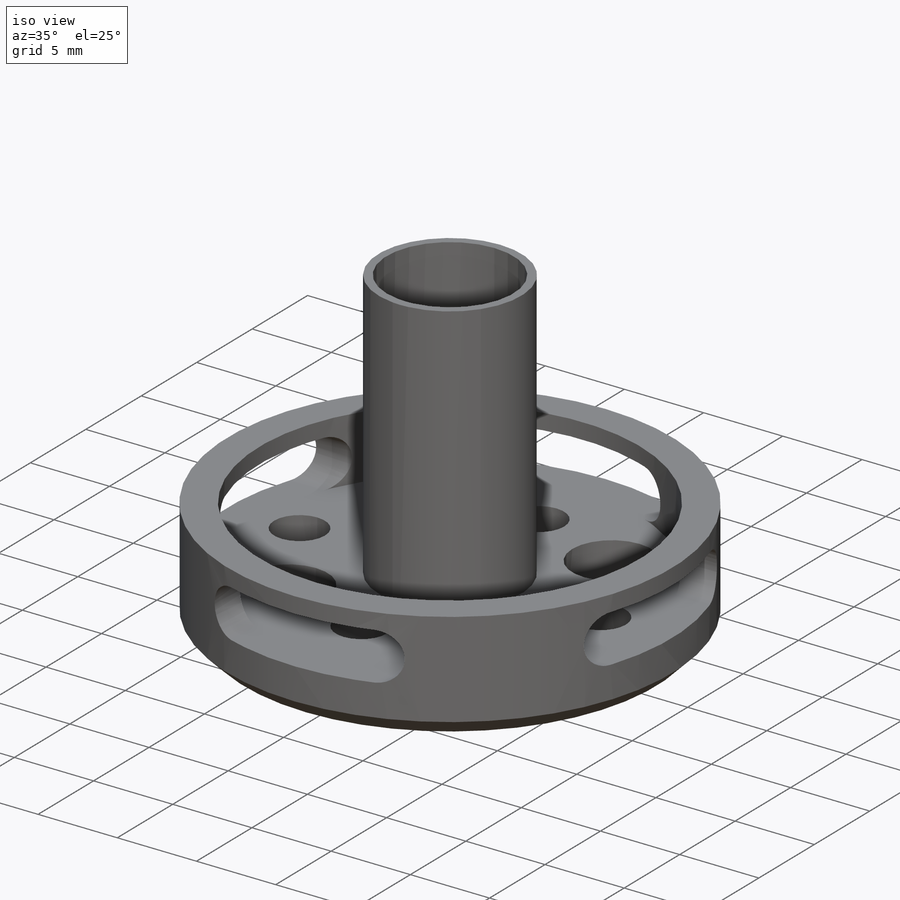
[diagram: iso view]
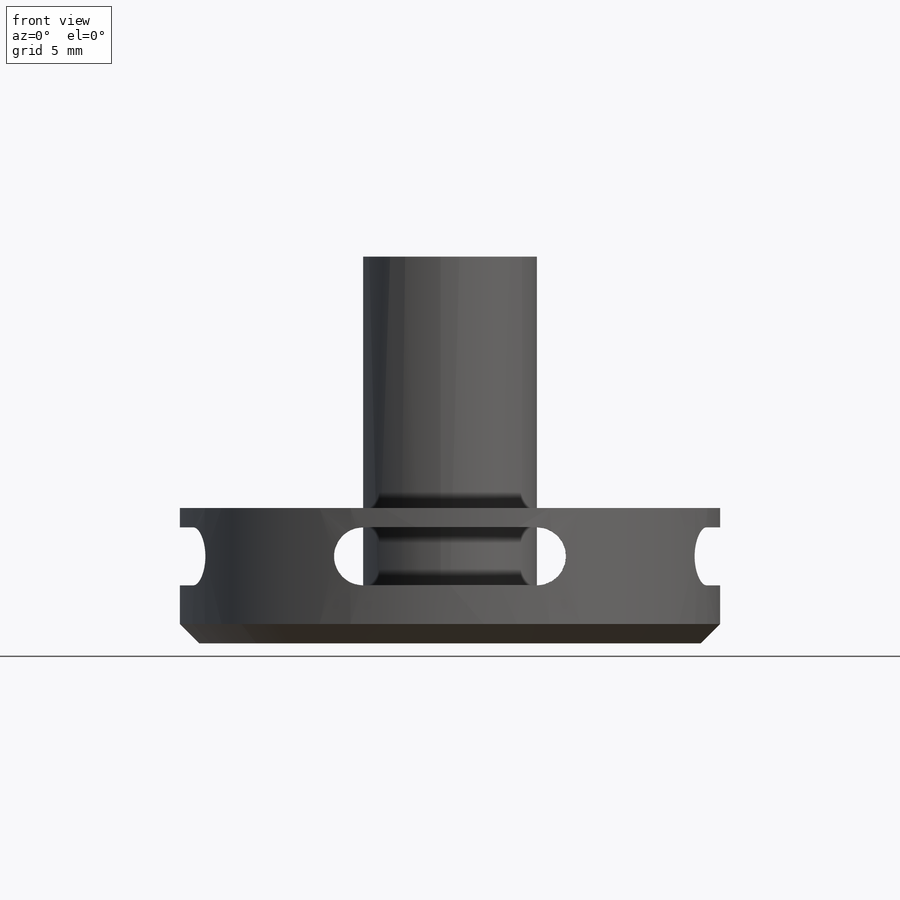
[diagram: front view]
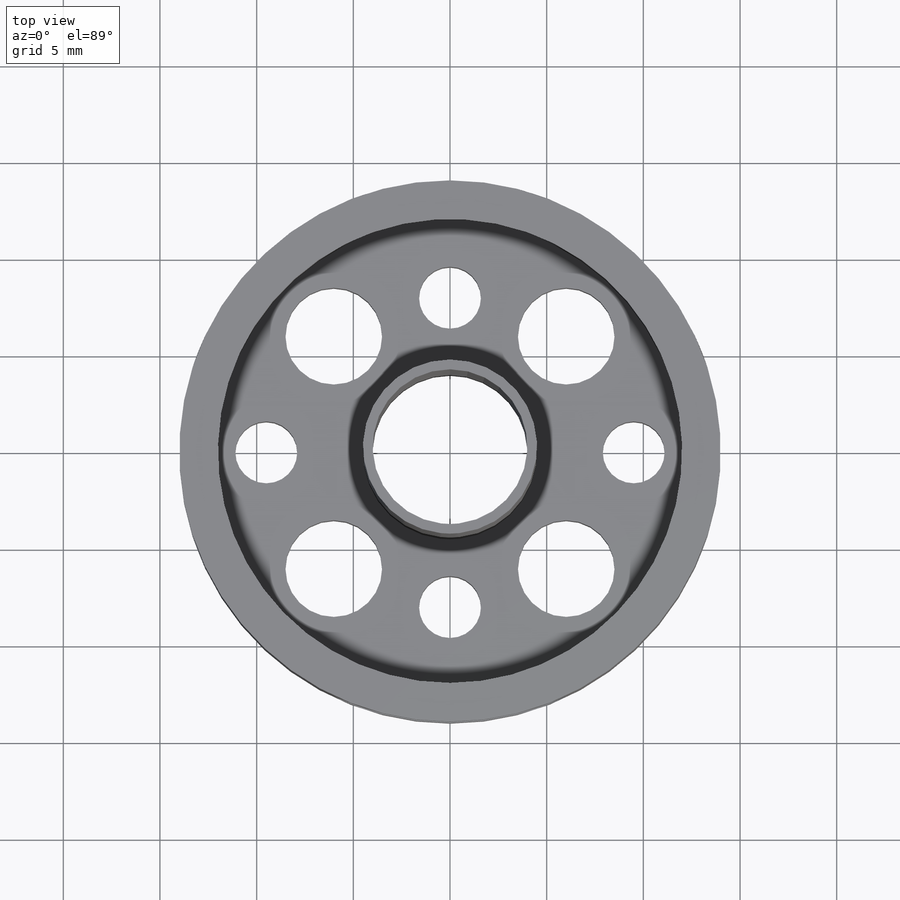
[diagram: top view]
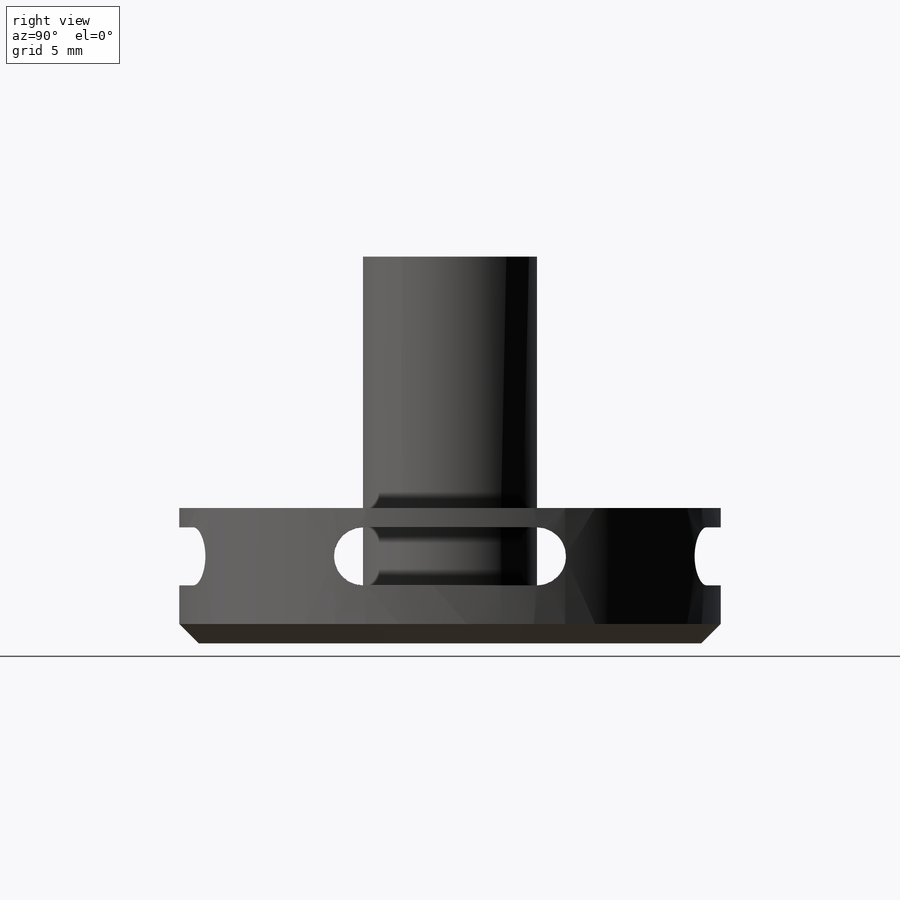
[diagram: right view]
SOLIDWORKS PART (.sldprt)
format: sldprt  version: not decoded by parser v0  size: 313,856 bytes
history: native  units: mm
features: sketch x7, cut_extrude x3, extrude x2, chamfer x2, material x1, hole x1, pattern_circular x1 (+12 scaffold rows collapsed)
feature tree (29):
  scaffold x12  (default folders/planes/origin — collapsed)
  material  "Cast Stainless Steel"
  sketch  "Sketch1"  dims[D1=28.0mm]
  extrude  "Boss-Extrude1"  Depth=7mm
  chamfer  "Chamfer1"  Distance=1mm Angle=45deg
  sketch  "Sketch11"  dims[D1=2.0mm]
  cut_extrude  "Cut-Extrude3"  Depth=4mm
  sketch  "Sketch2"  dims[c1.D3=8.0mm c1.D4=5.0mm c1.D5=8.0mm c1.D7=3.0mm c1.D1=26.0mm c2.D1=45.0deg c2.D2=26.0mm c3.D2=45.0deg c3.D5=4.5mm c3.D8=3.5mm c3.D9=4.5mm c3.D6=4.0]
  hole  "M3 Clearance Hole2"  Diameter=3.2mm Depth=7mm
  sketch  "Sketch4"  dims[c1.D1=4.5mm c1.D2=4.5mm c1.D3=3.5mm c1.D4=3.5mm c1.D5=16.0mm c2.D1=8.0mm c2.D2=19.0mm]
  sketch  "Sketch3"  dims[hole-wizard template sketch: 60 standard entries collapsed; hole parameters kept: c18.Thru Hole Depth=7.0mm]
  cut_extrude  "Cut-Extrude4"  [1 undecoded]
  chamfer  "Chamfer2"  Distance=0.5mm Angle=45deg
  sketch  "Sketch10"  dims[c1.D3=1.5mm c1.D4=1.5mm c1.D1=3.0mm c1.D2=9.0mm c1.D5=9.0mm c2.D2=3.0mm]
  cut_extrude  "Cut-Extrude2"  Depth=14mm
  pattern_circular  "CirPattern1"  Count=4 Angle=360deg
  sketch  "Sketch12"  dims[D1=9.0mm]
  extrude  "Boss-Extrude3"  Depth=17mm
decode coverage: 15 of 16 modeling features carry decoded parameters
note: ~ marks probable driven/reference dimensions
note: 1 parameter value undecoded
note: suppression state not decoded; provenance and decode notes live in map.json
